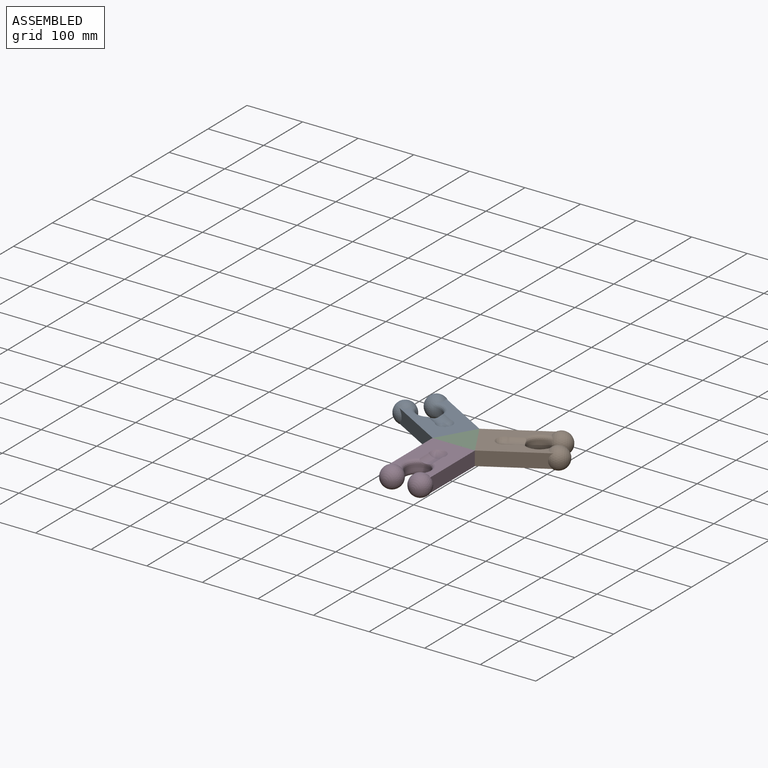
[diagram: assembled view]
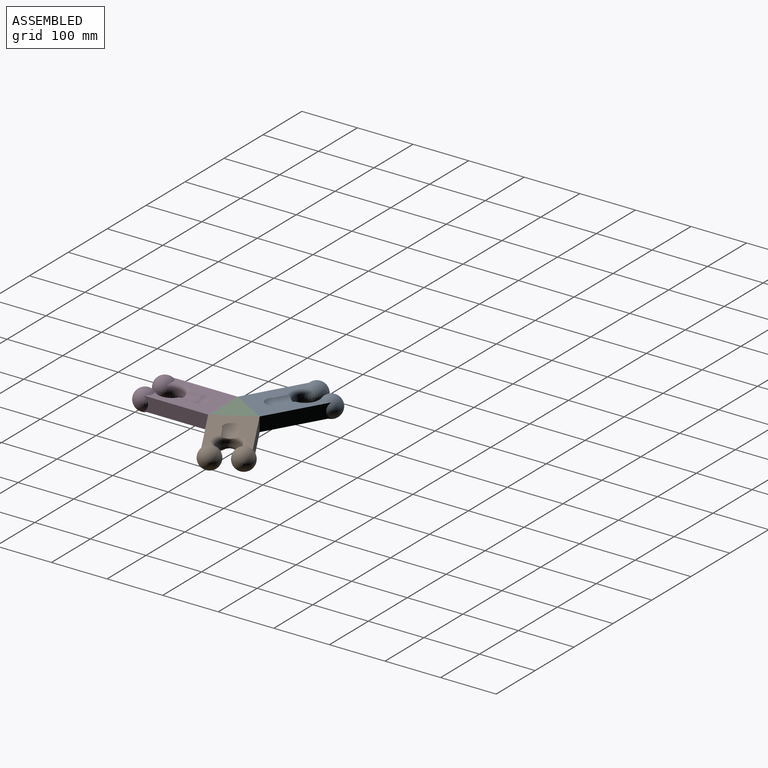
[diagram: assembled view, second angle]
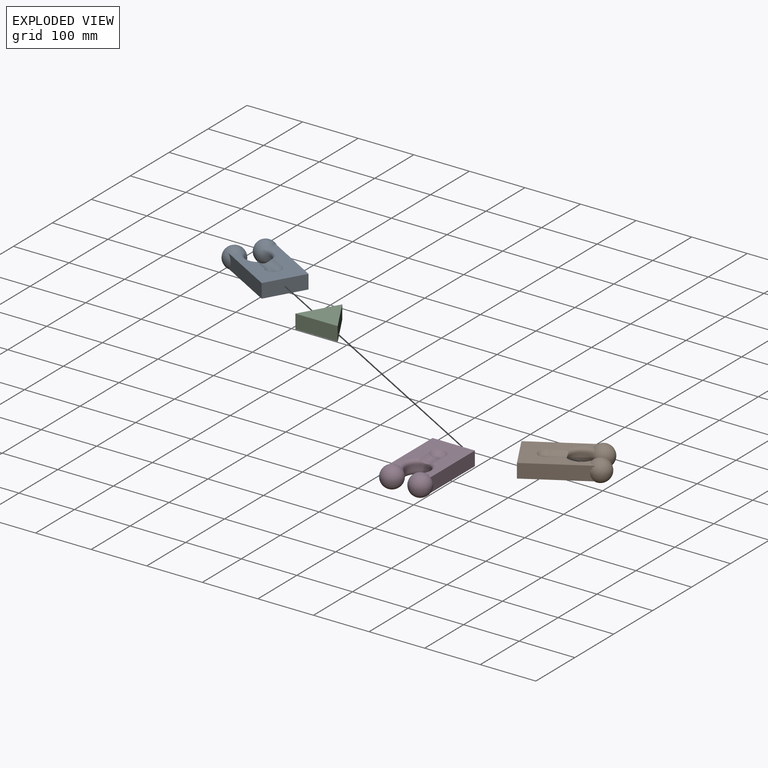
[diagram: exploded view]
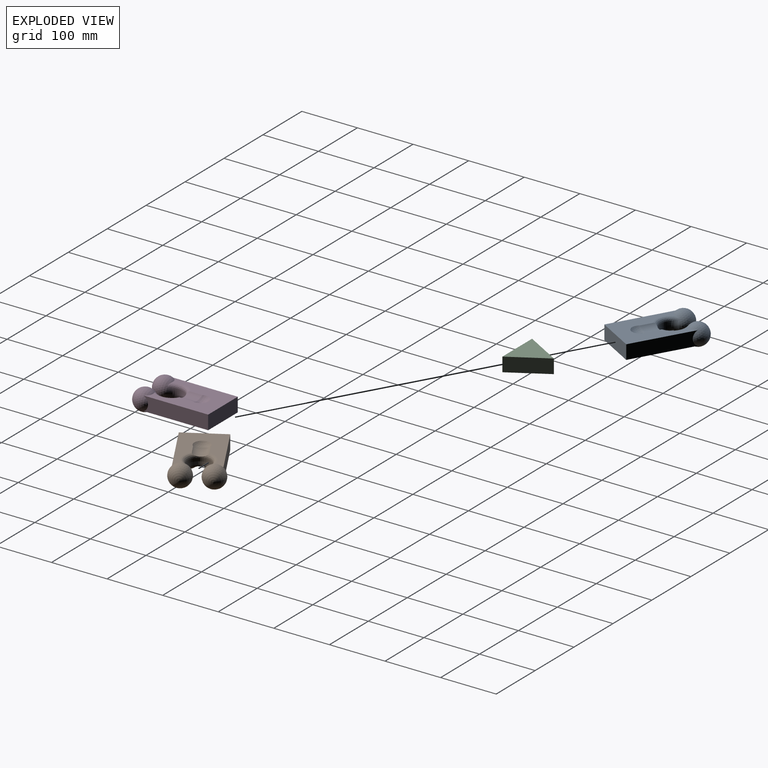
[diagram: exploded view, second angle]
ASSEMBLY  parts=4 mates=3
PART A: 16 faces, bbox 96.9x70.8x149.4 mm
  f0: plane 124.03x84.2mm, normal (0,-1,0), area 5303.8mm2, adj f2,f3,f4,f9,f11,f12,f13,f14
  f1: plane 124.03x84.2mm, normal (0,1,0), area 5303.7mm2, adj f2,f3,f4,f6,f10,f12,f13,f15
  f2: plane 116.03x25.4mm, normal (1,0,0), area 2804.6mm2, adj f0,f1,f4,f13
  f3: plane 116.03x25.4mm, normal (-1,0,0), area 2804.6mm2, adj f0,f1,f4,f12
  f4: plane 76.2x25.4mm, normal (0,0,-1), area 1935.5mm2, adj f0,f1,f2,f3
  f5: torus R=30.91mm, axis (1,0,0), area 1272.1mm2, adj f6,f7,f8,f9
  f6: bspline ~54.63x50.89mm, area 924mm2, adj f1,f5,f7,f8,f12,f13,f15
  f7: torus R=11.35mm, axis (-1,0,0), area 14.9mm2, adj f5,f6,f9,f13
  f8: torus R=11.35mm, axis (-1,0,0), area 14.9mm2, adj f5,f6,f9,f12
  f9: bspline ~54.63x51.1mm, area 924mm2, adj f0,f5,f7,f8,f12,f13,f14
  f10: sphere r=19.05mm, area 584mm2, adj f1,f15
  f11: sphere r=19.05mm, area 584mm2, adj f0,f14
  f12: sphere r=19.05mm, area 3745.7mm2, adj f0,f1,f3,f6,f8,f9
  f13: sphere r=19.05mm, area 3745.7mm2, adj f0,f1,f2,f6,f7,f9
  f14: cylinder r=19.05mm len=25.9mm, axis (0,0,1), area 620.9mm2, adj f0,f9,f11
  f15: cylinder r=19.05mm len=25.9mm, axis (0,0,1), area 620.9mm2, adj f1,f6,f10
PART B: same geometry as A
PART C: 5 faces, bbox 76.2x66x25.4 mm
  f0: plane 66.02x38.05mm, normal (-0.87,0.5,0), area 1935.5mm2, adj f1,f2,f3,f4
  f1: plane 76.2x25.4mm, normal (0,-1,0), area 1935.5mm2, adj f0,f2,f3,f4
  f2: plane 65.96x38.15mm, normal (0.87,0.5,0), area 1935.5mm2, adj f0,f1,f3,f4
  f3: plane 76.2x66.02mm, normal (0,0,1), area 2514.3mm2, adj f0,f1,f2
  f4: plane 76.2x66.02mm, normal (0,0,-1), area 2514.3mm2, adj f0,f1,f2
PART D: same geometry as A
PLACE A rot(axis=(-0.77,-0.45,0.45),104.5deg) t=(103.99,102.71,-57.43)mm
PLACE B rot(axis=(0.38,0.65,0.65),138.6deg) t=(244.07,102.71,-57.43)mm
PLACE C rot(axis=(0,0,-1),0deg) t=(174,65.49,-70.13)mm
PLACE D rot(axis=(1,0,0),90deg) t=(174.03,-18.6,-57.43)mm
MATE fastened A.f4 <-> C.f0  axis (0.87,-0.5,0) through (154.98,73.27,-57.43)mm
MATE fastened C.f2 <-> B.f4  axis (0.87,0.5,0) through (193.08,73.27,-57.43)mm
MATE fastened D.f4 <-> C.f1  axis (0,1,0) through (174.03,40.27,-57.43)mm
